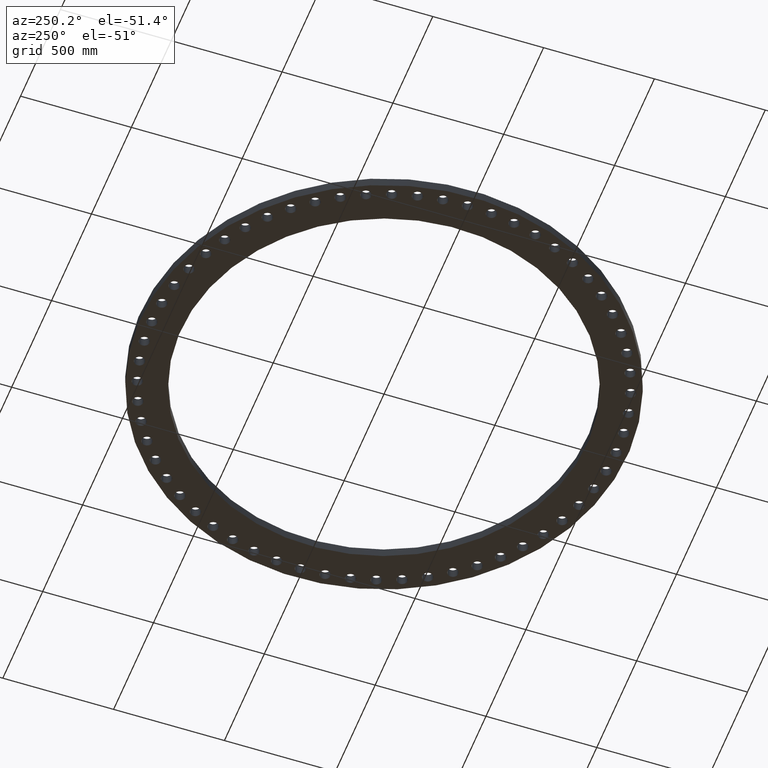
[diagram: clean part render]
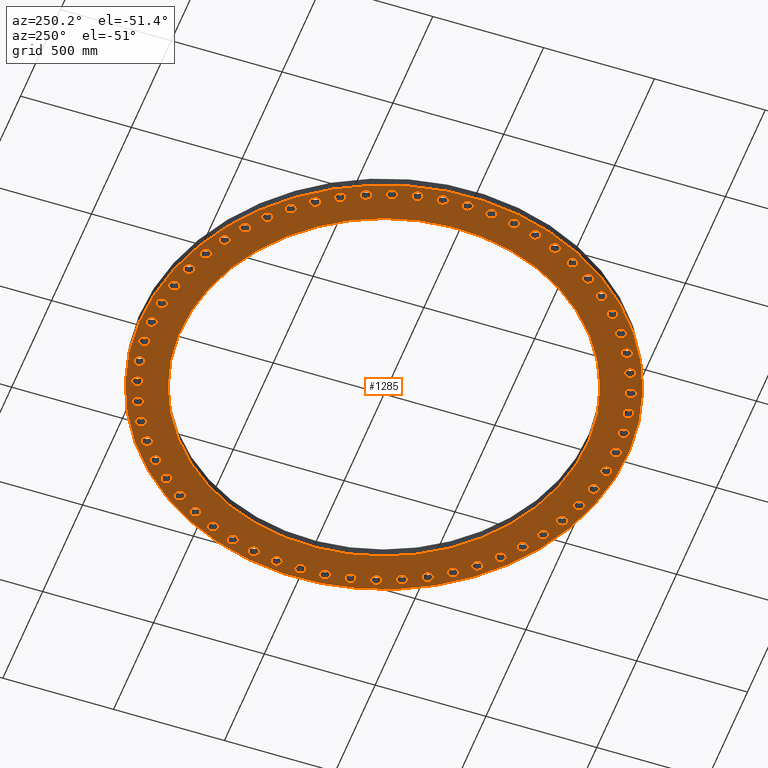
[diagram: same view with one face highlighted and labeled with its STEP entity id]
A machine part, auxiliary view. The second image highlights one B-rep face of the part: STEP entity #1285.
In plain terms, the highlighted planar face has unit normal (0, 0, 1).
Its self-contained STEP definition (entity closure, byte-faithful):
#51=AXIS2_PLACEMENT_3D('Circle Axis2P3D',#49,#50,$) ;
#77=AXIS2_PLACEMENT_3D('Circle Axis2P3D',#75,#76,$) ;
#122=AXIS2_PLACEMENT_3D('Circle Axis2P3D',#120,#121,$) ;
#139=AXIS2_PLACEMENT_3D('Circle Axis2P3D',#137,#138,$) ;
#165=AXIS2_PLACEMENT_3D('Circle Axis2P3D',#163,#164,$) ;
#191=AXIS2_PLACEMENT_3D('Circle Axis2P3D',#189,#190,$) ;
#209=AXIS2_PLACEMENT_3D('Plane Axis2P3D',#206,#207,#208) ;
#225=AXIS2_PLACEMENT_3D('Circle Axis2P3D',#223,#224,$) ;
#234=AXIS2_PLACEMENT_3D('Circle Axis2P3D',#232,#233,$) ;
#243=AXIS2_PLACEMENT_3D('Circle Axis2P3D',#241,#242,$) ;
#252=AXIS2_PLACEMENT_3D('Circle Axis2P3D',#250,#251,$) ;
#261=AXIS2_PLACEMENT_3D('Circle Axis2P3D',#259,#260,$) ;
#270=AXIS2_PLACEMENT_3D('Circle Axis2P3D',#268,#269,$) ;
#279=AXIS2_PLACEMENT_3D('Circle Axis2P3D',#277,#278,$) ;
#288=AXIS2_PLACEMENT_3D('Circle Axis2P3D',#286,#287,$) ;
#297=AXIS2_PLACEMENT_3D('Circle Axis2P3D',#295,#296,$) ;
#306=AXIS2_PLACEMENT_3D('Circle Axis2P3D',#304,#305,$) ;
#315=AXIS2_PLACEMENT_3D('Circle Axis2P3D',#313,#314,$) ;
#324=AXIS2_PLACEMENT_3D('Circle Axis2P3D',#322,#323,$) ;
#333=AXIS2_PLACEMENT_3D('Circle Axis2P3D',#331,#332,$) ;
#342=AXIS2_PLACEMENT_3D('Circle Axis2P3D',#340,#341,$) ;
#351=AXIS2_PLACEMENT_3D('Circle Axis2P3D',#349,#350,$) ;
#360=AXIS2_PLACEMENT_3D('Circle Axis2P3D',#358,#359,$) ;
#369=AXIS2_PLACEMENT_3D('Circle Axis2P3D',#367,#368,$) ;
#378=AXIS2_PLACEMENT_3D('Circle Axis2P3D',#376,#377,$) ;
#387=AXIS2_PLACEMENT_3D('Circle Axis2P3D',#385,#386,$) ;
#396=AXIS2_PLACEMENT_3D('Circle Axis2P3D',#394,#395,$) ;
#405=AXIS2_PLACEMENT_3D('Circle Axis2P3D',#403,#404,$) ;
#414=AXIS2_PLACEMENT_3D('Circle Axis2P3D',#412,#413,$) ;
#423=AXIS2_PLACEMENT_3D('Circle Axis2P3D',#421,#422,$) ;
#432=AXIS2_PLACEMENT_3D('Circle Axis2P3D',#430,#431,$) ;
#441=AXIS2_PLACEMENT_3D('Circle Axis2P3D',#439,#440,$) ;
#450=AXIS2_PLACEMENT_3D('Circle Axis2P3D',#448,#449,$) ;
#459=AXIS2_PLACEMENT_3D('Circle Axis2P3D',#457,#458,$) ;
#468=AXIS2_PLACEMENT_3D('Circle Axis2P3D',#466,#467,$) ;
#477=AXIS2_PLACEMENT_3D('Circle Axis2P3D',#475,#476,$) ;
#486=AXIS2_PLACEMENT_3D('Circle Axis2P3D',#484,#485,$) ;
#495=AXIS2_PLACEMENT_3D('Circle Axis2P3D',#493,#494,$) ;
#504=AXIS2_PLACEMENT_3D('Circle Axis2P3D',#502,#503,$) ;
#513=AXIS2_PLACEMENT_3D('Circle Axis2P3D',#511,#512,$) ;
#522=AXIS2_PLACEMENT_3D('Circle Axis2P3D',#520,#521,$) ;
#531=AXIS2_PLACEMENT_3D('Circle Axis2P3D',#529,#530,$) ;
#540=AXIS2_PLACEMENT_3D('Circle Axis2P3D',#538,#539,$) ;
#549=AXIS2_PLACEMENT_3D('Circle Axis2P3D',#547,#548,$) ;
#558=AXIS2_PLACEMENT_3D('Circle Axis2P3D',#556,#557,$) ;
#567=AXIS2_PLACEMENT_3D('Circle Axis2P3D',#565,#566,$) ;
#576=AXIS2_PLACEMENT_3D('Circle Axis2P3D',#574,#575,$) ;
#585=AXIS2_PLACEMENT_3D('Circle Axis2P3D',#583,#584,$) ;
#594=AXIS2_PLACEMENT_3D('Circle Axis2P3D',#592,#593,$) ;
#603=AXIS2_PLACEMENT_3D('Circle Axis2P3D',#601,#602,$) ;
#612=AXIS2_PLACEMENT_3D('Circle Axis2P3D',#610,#611,$) ;
#621=AXIS2_PLACEMENT_3D('Circle Axis2P3D',#619,#620,$) ;
#630=AXIS2_PLACEMENT_3D('Circle Axis2P3D',#628,#629,$) ;
#639=AXIS2_PLACEMENT_3D('Circle Axis2P3D',#637,#638,$) ;
#648=AXIS2_PLACEMENT_3D('Circle Axis2P3D',#646,#647,$) ;
#657=AXIS2_PLACEMENT_3D('Circle Axis2P3D',#655,#656,$) ;
#666=AXIS2_PLACEMENT_3D('Circle Axis2P3D',#664,#665,$) ;
#675=AXIS2_PLACEMENT_3D('Circle Axis2P3D',#673,#674,$) ;
#684=AXIS2_PLACEMENT_3D('Circle Axis2P3D',#682,#683,$) ;
#693=AXIS2_PLACEMENT_3D('Circle Axis2P3D',#691,#692,$) ;
#702=AXIS2_PLACEMENT_3D('Circle Axis2P3D',#700,#701,$) ;
#711=AXIS2_PLACEMENT_3D('Circle Axis2P3D',#709,#710,$) ;
#720=AXIS2_PLACEMENT_3D('Circle Axis2P3D',#718,#719,$) ;
#729=AXIS2_PLACEMENT_3D('Circle Axis2P3D',#727,#728,$) ;
#738=AXIS2_PLACEMENT_3D('Circle Axis2P3D',#736,#737,$) ;
#747=AXIS2_PLACEMENT_3D('Circle Axis2P3D',#745,#746,$) ;
#756=AXIS2_PLACEMENT_3D('Circle Axis2P3D',#754,#755,$) ;
#765=AXIS2_PLACEMENT_3D('Circle Axis2P3D',#763,#764,$) ;
#774=AXIS2_PLACEMENT_3D('Circle Axis2P3D',#772,#773,$) ;
#783=AXIS2_PLACEMENT_3D('Circle Axis2P3D',#781,#782,$) ;
#792=AXIS2_PLACEMENT_3D('Circle Axis2P3D',#790,#791,$) ;
#801=AXIS2_PLACEMENT_3D('Circle Axis2P3D',#799,#800,$) ;
#810=AXIS2_PLACEMENT_3D('Circle Axis2P3D',#808,#809,$) ;
#819=AXIS2_PLACEMENT_3D('Circle Axis2P3D',#817,#818,$) ;
#828=AXIS2_PLACEMENT_3D('Circle Axis2P3D',#826,#827,$) ;
#837=AXIS2_PLACEMENT_3D('Circle Axis2P3D',#835,#836,$) ;
#846=AXIS2_PLACEMENT_3D('Circle Axis2P3D',#844,#845,$) ;
#855=AXIS2_PLACEMENT_3D('Circle Axis2P3D',#853,#854,$) ;
#864=AXIS2_PLACEMENT_3D('Circle Axis2P3D',#862,#863,$) ;
#873=AXIS2_PLACEMENT_3D('Circle Axis2P3D',#871,#872,$) ;
#882=AXIS2_PLACEMENT_3D('Circle Axis2P3D',#880,#881,$) ;
#891=AXIS2_PLACEMENT_3D('Circle Axis2P3D',#889,#890,$) ;
#900=AXIS2_PLACEMENT_3D('Circle Axis2P3D',#898,#899,$) ;
#909=AXIS2_PLACEMENT_3D('Circle Axis2P3D',#907,#908,$) ;
#918=AXIS2_PLACEMENT_3D('Circle Axis2P3D',#916,#917,$) ;
#927=AXIS2_PLACEMENT_3D('Circle Axis2P3D',#925,#926,$) ;
#936=AXIS2_PLACEMENT_3D('Circle Axis2P3D',#934,#935,$) ;
#945=AXIS2_PLACEMENT_3D('Circle Axis2P3D',#943,#944,$) ;
#954=AXIS2_PLACEMENT_3D('Circle Axis2P3D',#952,#953,$) ;
#963=AXIS2_PLACEMENT_3D('Circle Axis2P3D',#961,#962,$) ;
#972=AXIS2_PLACEMENT_3D('Circle Axis2P3D',#970,#971,$) ;
#981=AXIS2_PLACEMENT_3D('Circle Axis2P3D',#979,#980,$) ;
#990=AXIS2_PLACEMENT_3D('Circle Axis2P3D',#988,#989,$) ;
#999=AXIS2_PLACEMENT_3D('Circle Axis2P3D',#997,#998,$) ;
#1008=AXIS2_PLACEMENT_3D('Circle Axis2P3D',#1006,#1007,$) ;
#1017=AXIS2_PLACEMENT_3D('Circle Axis2P3D',#1015,#1016,$) ;
#1026=AXIS2_PLACEMENT_3D('Circle Axis2P3D',#1024,#1025,$) ;
#1035=AXIS2_PLACEMENT_3D('Circle Axis2P3D',#1033,#1034,$) ;
#1044=AXIS2_PLACEMENT_3D('Circle Axis2P3D',#1042,#1043,$) ;
#1053=AXIS2_PLACEMENT_3D('Circle Axis2P3D',#1051,#1052,$) ;
#1062=AXIS2_PLACEMENT_3D('Circle Axis2P3D',#1060,#1061,$) ;
#1071=AXIS2_PLACEMENT_3D('Circle Axis2P3D',#1069,#1070,$) ;
#1080=AXIS2_PLACEMENT_3D('Circle Axis2P3D',#1078,#1079,$) ;
#1089=AXIS2_PLACEMENT_3D('Circle Axis2P3D',#1087,#1088,$) ;
#1098=AXIS2_PLACEMENT_3D('Circle Axis2P3D',#1096,#1097,$) ;
#1107=AXIS2_PLACEMENT_3D('Circle Axis2P3D',#1105,#1106,$) ;
#1116=AXIS2_PLACEMENT_3D('Circle Axis2P3D',#1114,#1115,$) ;
#1125=AXIS2_PLACEMENT_3D('Circle Axis2P3D',#1123,#1124,$) ;
#1134=AXIS2_PLACEMENT_3D('Circle Axis2P3D',#1132,#1133,$) ;
#1143=AXIS2_PLACEMENT_3D('Circle Axis2P3D',#1141,#1142,$) ;
#1152=AXIS2_PLACEMENT_3D('Circle Axis2P3D',#1150,#1151,$) ;
#1161=AXIS2_PLACEMENT_3D('Circle Axis2P3D',#1159,#1160,$) ;
#1170=AXIS2_PLACEMENT_3D('Circle Axis2P3D',#1168,#1169,$) ;
#1179=AXIS2_PLACEMENT_3D('Circle Axis2P3D',#1177,#1178,$) ;
#1188=AXIS2_PLACEMENT_3D('Circle Axis2P3D',#1186,#1187,$) ;
#1197=AXIS2_PLACEMENT_3D('Circle Axis2P3D',#1195,#1196,$) ;
#1206=AXIS2_PLACEMENT_3D('Circle Axis2P3D',#1204,#1205,$) ;
#1215=AXIS2_PLACEMENT_3D('Circle Axis2P3D',#1213,#1214,$) ;
#1224=AXIS2_PLACEMENT_3D('Circle Axis2P3D',#1222,#1223,$) ;
#1233=AXIS2_PLACEMENT_3D('Circle Axis2P3D',#1231,#1232,$) ;
#1242=AXIS2_PLACEMENT_3D('Circle Axis2P3D',#1240,#1241,$) ;
#1251=AXIS2_PLACEMENT_3D('Circle Axis2P3D',#1249,#1250,$) ;
#1260=AXIS2_PLACEMENT_3D('Circle Axis2P3D',#1258,#1259,$) ;
#1269=AXIS2_PLACEMENT_3D('Circle Axis2P3D',#1267,#1268,$) ;
#1278=AXIS2_PLACEMENT_3D('Circle Axis2P3D',#1276,#1277,$) ;
#44=CARTESIAN_POINT('Vertex',(40.4272663484,0.449461442443,0.)) ;
#49=CARTESIAN_POINT('Axis2P3D Location',(41.2500000002,0.,0.)) ;
#53=CARTESIAN_POINT('Vertex',(42.0727336519,-0.449461442443,0.)) ;
#75=CARTESIAN_POINT('Axis2P3D Location',(41.2500000002,0.,0.)) ;
#101=CARTESIAN_POINT('Vertex',(37.9554458019,20.7351545447,0.)) ;
#117=CARTESIAN_POINT('Vertex',(-37.9554458019,-20.7351545447,0.)) ;
#120=CARTESIAN_POINT('Axis2P3D Location',(0.,0.,0.)) ;
#137=CARTESIAN_POINT('Axis2P3D Location',(0.,0.,0.)) ;
#158=CARTESIAN_POINT('Vertex',(-31.6763425716,17.304864816,0.)) ;
#163=CARTESIAN_POINT('Axis2P3D Location',(-6.64385432059E-016,-2.09805925913E-016,0.)) ;
#167=CARTESIAN_POINT('Vertex',(31.6763425716,-17.304864816,0.)) ;
#189=CARTESIAN_POINT('Axis2P3D Location',(-6.64385432059E-016,-2.09805925913E-016,0.)) ;
#206=CARTESIAN_POINT('Axis2P3D Location',(0.,0.,0.)) ;
#223=CARTESIAN_POINT('Axis2P3D Location',(41.0240281841,4.31179910981,0.)) ;
#227=CARTESIAN_POINT('Vertex',(40.1588200395,4.67279927114,0.)) ;
#229=CARTESIAN_POINT('Vertex',(41.8892363287,3.95079894847,0.)) ;
#232=CARTESIAN_POINT('Axis2P3D Location',(41.0240281841,4.31179910981,0.)) ;
#241=CARTESIAN_POINT('Axis2P3D Location',(40.3485885304,8.57635724627,0.)) ;
#245=CARTESIAN_POINT('Vertex',(39.4503852944,8.84494093318,0.)) ;
#247=CARTESIAN_POINT('Vertex',(41.2467917664,8.30777355935,0.)) ;
#250=CARTESIAN_POINT('Axis2P3D Location',(40.3485885304,8.57635724627,0.)) ;
#259=CARTESIAN_POINT('Axis2P3D Location',(39.2310812973,12.746951018,0.)) ;
#263=CARTESIAN_POINT('Vertex',(38.3097238726,12.9201755714,0.)) ;
#265=CARTESIAN_POINT('Vertex',(40.1524387221,12.5737264646,0.)) ;
#268=CARTESIAN_POINT('Axis2P3D Location',(39.2310812973,12.746951018,0.)) ;
#277=CARTESIAN_POINT('Axis2P3D Location',(37.6837501279,16.7778865269,0.)) ;
#281=CARTESIAN_POINT('Vertex',(36.7493330992,16.8538540624,0.)) ;
#283=CARTESIAN_POINT('Vertex',(38.6181671566,16.7019189915,0.)) ;
#286=CARTESIAN_POINT('Axis2P3D Location',(37.6837501279,16.7778865269,0.)) ;
#295=CARTESIAN_POINT('Axis2P3D Location',(35.7235479063,20.6250000001,0.)) ;
#299=CARTESIAN_POINT('Vertex',(34.786308942,20.6028782014,0.)) ;
#301=CARTESIAN_POINT('Vertex',(36.6607868705,20.6471217988,0.)) ;
#304=CARTESIAN_POINT('Axis2P3D Location',(35.7235479063,20.6250000001,0.)) ;
#313=CARTESIAN_POINT('Axis2P3D Location',(33.3719510181,24.2461416572,0.)) ;
#317=CARTESIAN_POINT('Vertex',(32.4421587046,24.1261728953,0.)) ;
#319=CARTESIAN_POINT('Vertex',(34.3017433316,24.366110419,0.)) ;
#322=CARTESIAN_POINT('Axis2P3D Location',(33.3719510181,24.2461416572,0.)) ;
#331=CARTESIAN_POINT('Axis2P3D Location',(30.6547240511,27.6016375124,0.)) ;
#335=CARTESIAN_POINT('Vertex',(29.7425653875,27.3851361903,0.)) ;
#337=CARTESIAN_POINT('Vertex',(31.5668827146,27.8181388345,0.)) ;
#340=CARTESIAN_POINT('Axis2P3D Location',(30.6547240511,27.6016375124,0.)) ;
#349=CARTESIAN_POINT('Axis2P3D Location',(27.6016375124,30.6547240511,0.)) ;
#353=CARTESIAN_POINT('Vertex',(26.7171062999,30.3440622025,0.)) ;
#355=CARTESIAN_POINT('Vertex',(28.4861687249,30.9653858996,0.)) ;
#358=CARTESIAN_POINT('Axis2P3D Location',(27.6016375124,30.6547240511,0.)) ;
#367=CARTESIAN_POINT('Axis2P3D Location',(24.2461416572,33.3719510181,0.)) ;
#371=CARTESIAN_POINT('Vertex',(23.3989290048,32.9705323193,0.)) ;
#373=CARTESIAN_POINT('Vertex',(25.0933543095,33.7733697169,0.)) ;
#376=CARTESIAN_POINT('Axis2P3D Location',(24.2461416572,33.3719510181,0.)) ;
#385=CARTESIAN_POINT('Axis2P3D Location',(20.6250000001,35.7235479063,0.)) ;
#389=CARTESIAN_POINT('Vertex',(19.824388147,35.2357703845,0.)) ;
#391=CARTESIAN_POINT('Vertex',(21.4256118531,36.211325428,0.)) ;
#394=CARTESIAN_POINT('Axis2P3D Location',(20.6250000001,35.7235479063,0.)) ;
#403=CARTESIAN_POINT('Axis2P3D Location',(16.7778865269,37.6837501279,0.)) ;
#407=CARTESIAN_POINT('Vertex',(16.0326471441,37.1149579758,0.)) ;
#409=CARTESIAN_POINT('Vertex',(17.5231259097,38.25254228,0.)) ;
#412=CARTESIAN_POINT('Axis2P3D Location',(16.7778865269,37.6837501279,0.)) ;
#421=CARTESIAN_POINT('Axis2P3D Location',(12.746951018,39.2310812973,0.)) ;
#425=CARTESIAN_POINT('Vertex',(12.0652491041,38.5875063207,0.)) ;
#427=CARTESIAN_POINT('Vertex',(13.4286529319,39.874656274,0.)) ;
#430=CARTESIAN_POINT('Axis2P3D Location',(12.746951018,39.2310812973,0.)) ;
#439=CARTESIAN_POINT('Axis2P3D Location',(8.57635724627,40.3485885304,0.)) ;
#443=CARTESIAN_POINT('Vertex',(7.96566167009,39.6372818714,0.)) ;
#445=CARTESIAN_POINT('Vertex',(9.18705282245,41.0598951895,0.)) ;
#448=CARTESIAN_POINT('Axis2P3D Location',(8.57635724627,40.3485885304,0.)) ;
#457=CARTESIAN_POINT('Axis2P3D Location',(4.31179910981,41.0240281841,0.)) ;
#461=CARTESIAN_POINT('Vertex',(3.77880077988,40.2527830672,0.)) ;
#463=CARTESIAN_POINT('Vertex',(4.84479743974,41.795273301,0.)) ;
#466=CARTESIAN_POINT('Axis2P3D Location',(4.31179910981,41.0240281841,0.)) ;
#475=CARTESIAN_POINT('Axis2P3D Location',(-8.67197827109E-015,41.2500000002,0.)) ;
#479=CARTESIAN_POINT('Vertex',(-0.449461442443,40.4272663484,0.)) ;
#481=CARTESIAN_POINT('Vertex',(0.449461442443,42.0727336519,0.)) ;
#484=CARTESIAN_POINT('Axis2P3D Location',(-4.19611851827E-015,41.2500000002,0.)) ;
#493=CARTESIAN_POINT('Axis2P3D Location',(-4.31179910981,41.0240281841,0.)) ;
#497=CARTESIAN_POINT('Vertex',(-4.67279927114,40.1588200395,0.)) ;
#499=CARTESIAN_POINT('Vertex',(-3.95079894847,41.8892363287,0.)) ;
#502=CARTESIAN_POINT('Axis2P3D Location',(-4.31179910981,41.0240281841,0.)) ;
#511=CARTESIAN_POINT('Axis2P3D Location',(-8.57635724627,40.3485885304,0.)) ;
#515=CARTESIAN_POINT('Vertex',(-8.84494093318,39.4503852944,0.)) ;
#517=CARTESIAN_POINT('Vertex',(-8.30777355935,41.2467917664,0.)) ;
#520=CARTESIAN_POINT('Axis2P3D Location',(-8.57635724627,40.3485885304,0.)) ;
#529=CARTESIAN_POINT('Axis2P3D Location',(-12.746951018,39.2310812973,0.)) ;
#533=CARTESIAN_POINT('Vertex',(-12.9201755714,38.3097238726,0.)) ;
#535=CARTESIAN_POINT('Vertex',(-12.5737264646,40.1524387221,0.)) ;
#538=CARTESIAN_POINT('Axis2P3D Location',(-12.746951018,39.2310812973,0.)) ;
#547=CARTESIAN_POINT('Axis2P3D Location',(-16.7778865269,37.6837501279,0.)) ;
#551=CARTESIAN_POINT('Vertex',(-16.8538540624,36.7493330992,0.)) ;
#553=CARTESIAN_POINT('Vertex',(-16.7019189915,38.6181671566,0.)) ;
#556=CARTESIAN_POINT('Axis2P3D Location',(-16.7778865269,37.6837501279,0.)) ;
#565=CARTESIAN_POINT('Axis2P3D Location',(-20.6250000001,35.7235479063,0.)) ;
#569=CARTESIAN_POINT('Vertex',(-20.6028782014,34.786308942,0.)) ;
#571=CARTESIAN_POINT('Vertex',(-20.6471217988,36.6607868705,0.)) ;
#574=CARTESIAN_POINT('Axis2P3D Location',(-20.6250000001,35.7235479063,0.)) ;
#583=CARTESIAN_POINT('Axis2P3D Location',(-24.2461416572,33.3719510181,0.)) ;
#587=CARTESIAN_POINT('Vertex',(-24.1261728953,32.4421587046,0.)) ;
#589=CARTESIAN_POINT('Vertex',(-24.366110419,34.3017433316,0.)) ;
#592=CARTESIAN_POINT('Axis2P3D Location',(-24.2461416572,33.3719510181,0.)) ;
#601=CARTESIAN_POINT('Axis2P3D Location',(-27.6016375124,30.6547240511,0.)) ;
#605=CARTESIAN_POINT('Vertex',(-27.3851361903,29.7425653875,0.)) ;
#607=CARTESIAN_POINT('Vertex',(-27.8181388345,31.5668827146,0.)) ;
#610=CARTESIAN_POINT('Axis2P3D Location',(-27.6016375124,30.6547240511,0.)) ;
#619=CARTESIAN_POINT('Axis2P3D Location',(-30.6547240511,27.6016375124,0.)) ;
#623=CARTESIAN_POINT('Vertex',(-30.3440622025,26.7171062999,0.)) ;
#625=CARTESIAN_POINT('Vertex',(-30.9653858996,28.4861687249,0.)) ;
#628=CARTESIAN_POINT('Axis2P3D Location',(-30.6547240511,27.6016375124,0.)) ;
#637=CARTESIAN_POINT('Axis2P3D Location',(-33.3719510181,24.2461416572,0.)) ;
#641=CARTESIAN_POINT('Vertex',(-32.9705323193,23.3989290048,0.)) ;
#643=CARTESIAN_POINT('Vertex',(-33.7733697169,25.0933543095,0.)) ;
#646=CARTESIAN_POINT('Axis2P3D Location',(-33.3719510181,24.2461416572,0.)) ;
#655=CARTESIAN_POINT('Axis2P3D Location',(-35.7235479063,20.6250000001,0.)) ;
#659=CARTESIAN_POINT('Vertex',(-35.2357703845,19.824388147,0.)) ;
#661=CARTESIAN_POINT('Vertex',(-36.211325428,21.4256118531,0.)) ;
#664=CARTESIAN_POINT('Axis2P3D Location',(-35.7235479063,20.6250000001,0.)) ;
#673=CARTESIAN_POINT('Axis2P3D Location',(-37.6837501279,16.7778865269,0.)) ;
#677=CARTESIAN_POINT('Vertex',(-37.1149579758,16.0326471441,0.)) ;
#679=CARTESIAN_POINT('Vertex',(-38.25254228,17.5231259097,0.)) ;
#682=CARTESIAN_POINT('Axis2P3D Location',(-37.6837501279,16.7778865269,0.)) ;
#691=CARTESIAN_POINT('Axis2P3D Location',(-39.2310812973,12.746951018,0.)) ;
#695=CARTESIAN_POINT('Vertex',(-38.5875063207,12.0652491041,0.)) ;
#697=CARTESIAN_POINT('Vertex',(-39.874656274,13.4286529319,0.)) ;
#700=CARTESIAN_POINT('Axis2P3D Location',(-39.2310812973,12.746951018,0.)) ;
#709=CARTESIAN_POINT('Axis2P3D Location',(-40.3485885304,8.57635724627,0.)) ;
#713=CARTESIAN_POINT('Vertex',(-39.6372818714,7.96566167009,0.)) ;
#715=CARTESIAN_POINT('Vertex',(-41.0598951895,9.18705282245,0.)) ;
#718=CARTESIAN_POINT('Axis2P3D Location',(-40.3485885304,8.57635724627,0.)) ;
#727=CARTESIAN_POINT('Axis2P3D Location',(-41.0240281841,4.31179910981,0.)) ;
#731=CARTESIAN_POINT('Vertex',(-40.2527830672,3.77880077988,0.)) ;
#733=CARTESIAN_POINT('Vertex',(-41.795273301,4.84479743974,0.)) ;
#736=CARTESIAN_POINT('Axis2P3D Location',(-41.0240281841,4.31179910981,0.)) ;
#745=CARTESIAN_POINT('Axis2P3D Location',(-41.2500000002,6.71378962923E-015,0.)) ;
#749=CARTESIAN_POINT('Vertex',(-40.4272663484,-0.449461442443,0.)) ;
#751=CARTESIAN_POINT('Vertex',(-42.0727336519,0.449461442443,0.)) ;
#754=CARTESIAN_POINT('Axis2P3D Location',(-41.2500000002,3.49676543189E-015,0.)) ;
#763=CARTESIAN_POINT('Axis2P3D Location',(-41.0240281841,-4.31179910981,0.)) ;
#767=CARTESIAN_POINT('Vertex',(-40.1588200395,-4.67279927114,0.)) ;
#769=CARTESIAN_POINT('Vertex',(-41.8892363287,-3.95079894847,0.)) ;
#772=CARTESIAN_POINT('Axis2P3D Location',(-41.0240281841,-4.31179910981,0.)) ;
#781=CARTESIAN_POINT('Axis2P3D Location',(-40.3485885304,-8.57635724627,0.)) ;
#785=CARTESIAN_POINT('Vertex',(-39.4503852944,-8.84494093318,0.)) ;
#787=CARTESIAN_POINT('Vertex',(-41.2467917664,-8.30777355935,0.)) ;
#790=CARTESIAN_POINT('Axis2P3D Location',(-40.3485885304,-8.57635724627,0.)) ;
#799=CARTESIAN_POINT('Axis2P3D Location',(-39.2310812973,-12.746951018,0.)) ;
#803=CARTESIAN_POINT('Vertex',(-38.3097238726,-12.9201755714,0.)) ;
#805=CARTESIAN_POINT('Vertex',(-40.1524387221,-12.5737264646,0.)) ;
#808=CARTESIAN_POINT('Axis2P3D Location',(-39.2310812973,-12.746951018,0.)) ;
#817=CARTESIAN_POINT('Axis2P3D Location',(-37.6837501279,-16.7778865269,0.)) ;
#821=CARTESIAN_POINT('Vertex',(-36.7493330992,-16.8538540624,0.)) ;
#823=CARTESIAN_POINT('Vertex',(-38.6181671566,-16.7019189915,0.)) ;
#826=CARTESIAN_POINT('Axis2P3D Location',(-37.6837501279,-16.7778865269,0.)) ;
#835=CARTESIAN_POINT('Axis2P3D Location',(-35.7235479063,-20.6250000001,0.)) ;
#839=CARTESIAN_POINT('Vertex',(-34.786308942,-20.6028782014,0.)) ;
#841=CARTESIAN_POINT('Vertex',(-36.6607868705,-20.6471217988,0.)) ;
#844=CARTESIAN_POINT('Axis2P3D Location',(-35.7235479063,-20.6250000001,0.)) ;
#853=CARTESIAN_POINT('Axis2P3D Location',(-33.3719510181,-24.2461416572,0.)) ;
#857=CARTESIAN_POINT('Vertex',(-32.4421587046,-24.1261728953,0.)) ;
#859=CARTESIAN_POINT('Vertex',(-34.3017433316,-24.366110419,0.)) ;
#862=CARTESIAN_POINT('Axis2P3D Location',(-33.3719510181,-24.2461416572,0.)) ;
#871=CARTESIAN_POINT('Axis2P3D Location',(-30.6547240511,-27.6016375124,0.)) ;
#875=CARTESIAN_POINT('Vertex',(-29.7425653875,-27.3851361903,0.)) ;
#877=CARTESIAN_POINT('Vertex',(-31.5668827146,-27.8181388345,0.)) ;
#880=CARTESIAN_POINT('Axis2P3D Location',(-30.6547240511,-27.6016375124,0.)) ;
#889=CARTESIAN_POINT('Axis2P3D Location',(-27.6016375124,-30.6547240511,0.)) ;
#893=CARTESIAN_POINT('Vertex',(-26.7171062999,-30.3440622025,0.)) ;
#895=CARTESIAN_POINT('Vertex',(-28.4861687249,-30.9653858996,0.)) ;
#898=CARTESIAN_POINT('Axis2P3D Location',(-27.6016375124,-30.6547240511,0.)) ;
#907=CARTESIAN_POINT('Axis2P3D Location',(-24.2461416572,-33.3719510181,0.)) ;
#911=CARTESIAN_POINT('Vertex',(-23.3989290048,-32.9705323193,0.)) ;
#913=CARTESIAN_POINT('Vertex',(-25.0933543095,-33.7733697169,0.)) ;
#916=CARTESIAN_POINT('Axis2P3D Location',(-24.2461416572,-33.3719510181,0.)) ;
#925=CARTESIAN_POINT('Axis2P3D Location',(-20.6250000001,-35.7235479063,0.)) ;
#929=CARTESIAN_POINT('Vertex',(-19.824388147,-35.2357703845,0.)) ;
#931=CARTESIAN_POINT('Vertex',(-21.4256118531,-36.211325428,0.)) ;
#934=CARTESIAN_POINT('Axis2P3D Location',(-20.6250000001,-35.7235479063,0.)) ;
#943=CARTESIAN_POINT('Axis2P3D Location',(-16.7778865269,-37.6837501279,0.)) ;
#947=CARTESIAN_POINT('Vertex',(-16.0326471441,-37.1149579758,0.)) ;
#949=CARTESIAN_POINT('Vertex',(-17.5231259097,-38.25254228,0.)) ;
#952=CARTESIAN_POINT('Axis2P3D Location',(-16.7778865269,-37.6837501279,0.)) ;
#961=CARTESIAN_POINT('Axis2P3D Location',(-12.746951018,-39.2310812973,0.)) ;
#965=CARTESIAN_POINT('Vertex',(-12.0652491041,-38.5875063207,0.)) ;
#967=CARTESIAN_POINT('Vertex',(-13.4286529319,-39.874656274,0.)) ;
#970=CARTESIAN_POINT('Axis2P3D Location',(-12.746951018,-39.2310812973,0.)) ;
#979=CARTESIAN_POINT('Axis2P3D Location',(-8.57635724627,-40.3485885304,0.)) ;
#983=CARTESIAN_POINT('Vertex',(-7.96566167009,-39.6372818714,0.)) ;
#985=CARTESIAN_POINT('Vertex',(-9.18705282245,-41.0598951895,0.)) ;
#988=CARTESIAN_POINT('Axis2P3D Location',(-8.57635724627,-40.3485885304,0.)) ;
#997=CARTESIAN_POINT('Axis2P3D Location',(-4.31179910981,-41.0240281841,0.)) ;
#1001=CARTESIAN_POINT('Vertex',(-3.77880077988,-40.2527830672,0.)) ;
#1003=CARTESIAN_POINT('Vertex',(-4.84479743974,-41.795273301,0.)) ;
#1006=CARTESIAN_POINT('Axis2P3D Location',(-4.31179910981,-41.0240281841,0.)) ;
#1015=CARTESIAN_POINT('Axis2P3D Location',(-5.45495407375E-015,-41.2500000002,0.)) ;
#1019=CARTESIAN_POINT('Vertex',(0.449461442443,-40.4272663484,0.)) ;
#1021=CARTESIAN_POINT('Vertex',(-0.449461442443,-42.0727336519,0.)) ;
#1024=CARTESIAN_POINT('Axis2P3D Location',(-9.93081382657E-015,-41.2500000002,0.)) ;
#1033=CARTESIAN_POINT('Axis2P3D Location',(4.31179910981,-41.0240281841,0.)) ;
#1037=CARTESIAN_POINT('Vertex',(4.67279927114,-40.1588200395,0.)) ;
#1039=CARTESIAN_POINT('Vertex',(3.95079894847,-41.8892363287,0.)) ;
#1042=CARTESIAN_POINT('Axis2P3D Location',(4.31179910981,-41.0240281841,0.)) ;
#1051=CARTESIAN_POINT('Axis2P3D Location',(8.57635724627,-40.3485885304,0.)) ;
#1055=CARTESIAN_POINT('Vertex',(8.84494093318,-39.4503852944,0.)) ;
#1057=CARTESIAN_POINT('Vertex',(8.30777355935,-41.2467917664,0.)) ;
#1060=CARTESIAN_POINT('Axis2P3D Location',(8.57635724627,-40.3485885304,0.)) ;
#1069=CARTESIAN_POINT('Axis2P3D Location',(12.746951018,-39.2310812973,0.)) ;
#1073=CARTESIAN_POINT('Vertex',(12.9201755714,-38.3097238726,0.)) ;
#1075=CARTESIAN_POINT('Vertex',(12.5737264646,-40.1524387221,0.)) ;
#1078=CARTESIAN_POINT('Axis2P3D Location',(12.746951018,-39.2310812973,0.)) ;
#1087=CARTESIAN_POINT('Axis2P3D Location',(16.7778865269,-37.6837501279,0.)) ;
#1091=CARTESIAN_POINT('Vertex',(16.8538540624,-36.7493330992,0.)) ;
#1093=CARTESIAN_POINT('Vertex',(16.7019189915,-38.6181671566,0.)) ;
#1096=CARTESIAN_POINT('Axis2P3D Location',(16.7778865269,-37.6837501279,0.)) ;
#1105=CARTESIAN_POINT('Axis2P3D Location',(20.6250000001,-35.7235479063,0.)) ;
#1109=CARTESIAN_POINT('Vertex',(20.6028782014,-34.786308942,0.)) ;
#1111=CARTESIAN_POINT('Vertex',(20.6471217988,-36.6607868705,0.)) ;
#1114=CARTESIAN_POINT('Axis2P3D Location',(20.6250000001,-35.7235479063,0.)) ;
#1123=CARTESIAN_POINT('Axis2P3D Location',(24.2461416572,-33.3719510181,0.)) ;
#1127=CARTESIAN_POINT('Vertex',(24.1261728953,-32.4421587046,0.)) ;
#1129=CARTESIAN_POINT('Vertex',(24.366110419,-34.3017433316,0.)) ;
#1132=CARTESIAN_POINT('Axis2P3D Location',(24.2461416572,-33.3719510181,0.)) ;
#1141=CARTESIAN_POINT('Axis2P3D Location',(27.6016375124,-30.6547240511,0.)) ;
#1145=CARTESIAN_POINT('Vertex',(27.3851361903,-29.7425653875,0.)) ;
#1147=CARTESIAN_POINT('Vertex',(27.8181388345,-31.5668827146,0.)) ;
#1150=CARTESIAN_POINT('Axis2P3D Location',(27.6016375124,-30.6547240511,0.)) ;
#1159=CARTESIAN_POINT('Axis2P3D Location',(30.6547240511,-27.6016375124,0.)) ;
#1163=CARTESIAN_POINT('Vertex',(30.3440622025,-26.7171062999,0.)) ;
#1165=CARTESIAN_POINT('Vertex',(30.9653858996,-28.4861687249,0.)) ;
#1168=CARTESIAN_POINT('Axis2P3D Location',(30.6547240511,-27.6016375124,0.)) ;
#1177=CARTESIAN_POINT('Axis2P3D Location',(33.3719510181,-24.2461416572,0.)) ;
#1181=CARTESIAN_POINT('Vertex',(32.9705323193,-23.3989290048,0.)) ;
#1183=CARTESIAN_POINT('Vertex',(33.7733697169,-25.0933543095,0.)) ;
#1186=CARTESIAN_POINT('Axis2P3D Location',(33.3719510181,-24.2461416572,0.)) ;
#1195=CARTESIAN_POINT('Axis2P3D Location',(35.7235479063,-20.6250000001,0.)) ;
#1199=CARTESIAN_POINT('Vertex',(35.2357703845,-19.824388147,0.)) ;
#1201=CARTESIAN_POINT('Vertex',(36.211325428,-21.4256118531,0.)) ;
#1204=CARTESIAN_POINT('Axis2P3D Location',(35.7235479063,-20.6250000001,0.)) ;
#1213=CARTESIAN_POINT('Axis2P3D Location',(37.6837501279,-16.7778865269,0.)) ;
#1217=CARTESIAN_POINT('Vertex',(37.1149579758,-16.0326471441,0.)) ;
#1219=CARTESIAN_POINT('Vertex',(38.25254228,-17.5231259097,0.)) ;
#1222=CARTESIAN_POINT('Axis2P3D Location',(37.6837501279,-16.7778865269,0.)) ;
#1231=CARTESIAN_POINT('Axis2P3D Location',(39.2310812973,-12.746951018,0.)) ;
#1235=CARTESIAN_POINT('Vertex',(38.5875063207,-12.0652491041,0.)) ;
#1237=CARTESIAN_POINT('Vertex',(39.874656274,-13.4286529319,0.)) ;
#1240=CARTESIAN_POINT('Axis2P3D Location',(39.2310812973,-12.746951018,0.)) ;
#1249=CARTESIAN_POINT('Axis2P3D Location',(40.3485885304,-8.57635724627,0.)) ;
#1253=CARTESIAN_POINT('Vertex',(39.6372818714,-7.96566167009,0.)) ;
#1255=CARTESIAN_POINT('Vertex',(41.0598951895,-9.18705282245,0.)) ;
#1258=CARTESIAN_POINT('Axis2P3D Location',(40.3485885304,-8.57635724627,0.)) ;
#1267=CARTESIAN_POINT('Axis2P3D Location',(41.0240281841,-4.31179910981,0.)) ;
#1271=CARTESIAN_POINT('Vertex',(40.2527830672,-3.77880077988,0.)) ;
#1273=CARTESIAN_POINT('Vertex',(41.795273301,-4.84479743974,0.)) ;
#1276=CARTESIAN_POINT('Axis2P3D Location',(41.0240281841,-4.31179910981,0.)) ;
#50=DIRECTION('Axis2P3D Direction',(0.,-0.,-0.0393700787402)) ;
#76=DIRECTION('Axis2P3D Direction',(0.,-0.,-0.0393700787402)) ;
#121=DIRECTION('Axis2P3D Direction',(0.,0.,0.0393700787402)) ;
#138=DIRECTION('Axis2P3D Direction',(0.,0.,0.0393700787402)) ;
#164=DIRECTION('Axis2P3D Direction',(0.,-0.,-0.0393700787402)) ;
#190=DIRECTION('Axis2P3D Direction',(0.,-0.,-0.0393700787402)) ;
#207=DIRECTION('Axis2P3D Direction',(0.,0.,0.0393700787402)) ;
#208=DIRECTION('Axis2P3D XDirection',(0.0393700787402,0.,0.)) ;
#224=DIRECTION('Axis2P3D Direction',(0.,0.,0.0393700787402)) ;
#233=DIRECTION('Axis2P3D Direction',(0.,0.,0.0393700787402)) ;
#242=DIRECTION('Axis2P3D Direction',(0.,0.,0.0393700787402)) ;
#251=DIRECTION('Axis2P3D Direction',(0.,0.,0.0393700787402)) ;
#260=DIRECTION('Axis2P3D Direction',(0.,0.,0.0393700787402)) ;
#269=DIRECTION('Axis2P3D Direction',(0.,0.,0.0393700787402)) ;
#278=DIRECTION('Axis2P3D Direction',(0.,0.,0.0393700787402)) ;
#287=DIRECTION('Axis2P3D Direction',(0.,0.,0.0393700787402)) ;
#296=DIRECTION('Axis2P3D Direction',(0.,0.,0.0393700787402)) ;
#305=DIRECTION('Axis2P3D Direction',(0.,0.,0.0393700787402)) ;
#314=DIRECTION('Axis2P3D Direction',(0.,0.,0.0393700787402)) ;
#323=DIRECTION('Axis2P3D Direction',(0.,0.,0.0393700787402)) ;
#332=DIRECTION('Axis2P3D Direction',(0.,0.,0.0393700787402)) ;
#341=DIRECTION('Axis2P3D Direction',(0.,0.,0.0393700787402)) ;
#350=DIRECTION('Axis2P3D Direction',(0.,0.,0.0393700787402)) ;
#359=DIRECTION('Axis2P3D Direction',(0.,0.,0.0393700787402)) ;
#368=DIRECTION('Axis2P3D Direction',(0.,0.,0.0393700787402)) ;
#377=DIRECTION('Axis2P3D Direction',(0.,0.,0.0393700787402)) ;
#386=DIRECTION('Axis2P3D Direction',(0.,0.,0.0393700787402)) ;
#395=DIRECTION('Axis2P3D Direction',(0.,0.,0.0393700787402)) ;
#404=DIRECTION('Axis2P3D Direction',(0.,0.,0.0393700787402)) ;
#413=DIRECTION('Axis2P3D Direction',(0.,0.,0.0393700787402)) ;
#422=DIRECTION('Axis2P3D Direction',(0.,0.,0.0393700787402)) ;
#431=DIRECTION('Axis2P3D Direction',(0.,0.,0.0393700787402)) ;
#440=DIRECTION('Axis2P3D Direction',(0.,0.,0.0393700787402)) ;
#449=DIRECTION('Axis2P3D Direction',(0.,0.,0.0393700787402)) ;
#458=DIRECTION('Axis2P3D Direction',(0.,0.,0.0393700787402)) ;
#467=DIRECTION('Axis2P3D Direction',(0.,0.,0.0393700787402)) ;
#476=DIRECTION('Axis2P3D Direction',(0.,0.,0.0393700787402)) ;
#485=DIRECTION('Axis2P3D Direction',(0.,0.,0.0393700787402)) ;
#494=DIRECTION('Axis2P3D Direction',(0.,0.,0.0393700787402)) ;
#503=DIRECTION('Axis2P3D Direction',(0.,0.,0.0393700787402)) ;
#512=DIRECTION('Axis2P3D Direction',(0.,0.,0.0393700787402)) ;
#521=DIRECTION('Axis2P3D Direction',(0.,0.,0.0393700787402)) ;
#530=DIRECTION('Axis2P3D Direction',(0.,0.,0.0393700787402)) ;
#539=DIRECTION('Axis2P3D Direction',(0.,0.,0.0393700787402)) ;
#548=DIRECTION('Axis2P3D Direction',(0.,0.,0.0393700787402)) ;
#557=DIRECTION('Axis2P3D Direction',(0.,0.,0.0393700787402)) ;
#566=DIRECTION('Axis2P3D Direction',(0.,0.,0.0393700787402)) ;
#575=DIRECTION('Axis2P3D Direction',(0.,0.,0.0393700787402)) ;
#584=DIRECTION('Axis2P3D Direction',(0.,0.,0.0393700787402)) ;
#593=DIRECTION('Axis2P3D Direction',(0.,0.,0.0393700787402)) ;
#602=DIRECTION('Axis2P3D Direction',(0.,0.,0.0393700787402)) ;
#611=DIRECTION('Axis2P3D Direction',(0.,0.,0.0393700787402)) ;
#620=DIRECTION('Axis2P3D Direction',(0.,0.,0.0393700787402)) ;
#629=DIRECTION('Axis2P3D Direction',(0.,0.,0.0393700787402)) ;
#638=DIRECTION('Axis2P3D Direction',(0.,0.,0.0393700787402)) ;
#647=DIRECTION('Axis2P3D Direction',(0.,0.,0.0393700787402)) ;
#656=DIRECTION('Axis2P3D Direction',(0.,0.,0.0393700787402)) ;
#665=DIRECTION('Axis2P3D Direction',(0.,0.,0.0393700787402)) ;
#674=DIRECTION('Axis2P3D Direction',(0.,0.,0.0393700787402)) ;
#683=DIRECTION('Axis2P3D Direction',(0.,0.,0.0393700787402)) ;
#692=DIRECTION('Axis2P3D Direction',(0.,0.,0.0393700787402)) ;
#701=DIRECTION('Axis2P3D Direction',(0.,0.,0.0393700787402)) ;
#710=DIRECTION('Axis2P3D Direction',(0.,0.,0.0393700787402)) ;
#719=DIRECTION('Axis2P3D Direction',(0.,0.,0.0393700787402)) ;
#728=DIRECTION('Axis2P3D Direction',(0.,0.,0.0393700787402)) ;
#737=DIRECTION('Axis2P3D Direction',(0.,0.,0.0393700787402)) ;
#746=DIRECTION('Axis2P3D Direction',(0.,0.,0.0393700787402)) ;
#755=DIRECTION('Axis2P3D Direction',(0.,0.,0.0393700787402)) ;
#764=DIRECTION('Axis2P3D Direction',(0.,0.,0.0393700787402)) ;
#773=DIRECTION('Axis2P3D Direction',(0.,0.,0.0393700787402)) ;
#782=DIRECTION('Axis2P3D Direction',(0.,0.,0.0393700787402)) ;
#791=DIRECTION('Axis2P3D Direction',(0.,0.,0.0393700787402)) ;
#800=DIRECTION('Axis2P3D Direction',(0.,0.,0.0393700787402)) ;
#809=DIRECTION('Axis2P3D Direction',(0.,0.,0.0393700787402)) ;
#818=DIRECTION('Axis2P3D Direction',(0.,0.,0.0393700787402)) ;
#827=DIRECTION('Axis2P3D Direction',(0.,0.,0.0393700787402)) ;
#836=DIRECTION('Axis2P3D Direction',(0.,0.,0.0393700787402)) ;
#845=DIRECTION('Axis2P3D Direction',(0.,0.,0.0393700787402)) ;
#854=DIRECTION('Axis2P3D Direction',(0.,0.,0.0393700787402)) ;
#863=DIRECTION('Axis2P3D Direction',(0.,0.,0.0393700787402)) ;
#872=DIRECTION('Axis2P3D Direction',(0.,0.,0.0393700787402)) ;
#881=DIRECTION('Axis2P3D Direction',(0.,0.,0.0393700787402)) ;
#890=DIRECTION('Axis2P3D Direction',(0.,0.,0.0393700787402)) ;
#899=DIRECTION('Axis2P3D Direction',(0.,0.,0.0393700787402)) ;
#908=DIRECTION('Axis2P3D Direction',(0.,0.,0.0393700787402)) ;
#917=DIRECTION('Axis2P3D Direction',(0.,0.,0.0393700787402)) ;
#926=DIRECTION('Axis2P3D Direction',(0.,0.,0.0393700787402)) ;
#935=DIRECTION('Axis2P3D Direction',(0.,0.,0.0393700787402)) ;
#944=DIRECTION('Axis2P3D Direction',(0.,0.,0.0393700787402)) ;
#953=DIRECTION('Axis2P3D Direction',(0.,0.,0.0393700787402)) ;
#962=DIRECTION('Axis2P3D Direction',(0.,0.,0.0393700787402)) ;
#971=DIRECTION('Axis2P3D Direction',(0.,0.,0.0393700787402)) ;
#980=DIRECTION('Axis2P3D Direction',(0.,0.,0.0393700787402)) ;
#989=DIRECTION('Axis2P3D Direction',(0.,0.,0.0393700787402)) ;
#998=DIRECTION('Axis2P3D Direction',(0.,0.,0.0393700787402)) ;
#1007=DIRECTION('Axis2P3D Direction',(0.,0.,0.0393700787402)) ;
#1016=DIRECTION('Axis2P3D Direction',(0.,0.,0.0393700787402)) ;
#1025=DIRECTION('Axis2P3D Direction',(0.,0.,0.0393700787402)) ;
#1034=DIRECTION('Axis2P3D Direction',(0.,0.,0.0393700787402)) ;
#1043=DIRECTION('Axis2P3D Direction',(0.,0.,0.0393700787402)) ;
#1052=DIRECTION('Axis2P3D Direction',(0.,0.,0.0393700787402)) ;
#1061=DIRECTION('Axis2P3D Direction',(0.,0.,0.0393700787402)) ;
#1070=DIRECTION('Axis2P3D Direction',(0.,0.,0.0393700787402)) ;
#1079=DIRECTION('Axis2P3D Direction',(0.,0.,0.0393700787402)) ;
#1088=DIRECTION('Axis2P3D Direction',(0.,0.,0.0393700787402)) ;
#1097=DIRECTION('Axis2P3D Direction',(0.,0.,0.0393700787402)) ;
#1106=DIRECTION('Axis2P3D Direction',(0.,0.,0.0393700787402)) ;
#1115=DIRECTION('Axis2P3D Direction',(0.,0.,0.0393700787402)) ;
#1124=DIRECTION('Axis2P3D Direction',(0.,0.,0.0393700787402)) ;
#1133=DIRECTION('Axis2P3D Direction',(0.,0.,0.0393700787402)) ;
#1142=DIRECTION('Axis2P3D Direction',(0.,0.,0.0393700787402)) ;
#1151=DIRECTION('Axis2P3D Direction',(0.,0.,0.0393700787402)) ;
#1160=DIRECTION('Axis2P3D Direction',(0.,0.,0.0393700787402)) ;
#1169=DIRECTION('Axis2P3D Direction',(0.,0.,0.0393700787402)) ;
#1178=DIRECTION('Axis2P3D Direction',(0.,0.,0.0393700787402)) ;
#1187=DIRECTION('Axis2P3D Direction',(0.,0.,0.0393700787402)) ;
#1196=DIRECTION('Axis2P3D Direction',(0.,0.,0.0393700787402)) ;
#1205=DIRECTION('Axis2P3D Direction',(0.,0.,0.0393700787402)) ;
#1214=DIRECTION('Axis2P3D Direction',(0.,0.,0.0393700787402)) ;
#1223=DIRECTION('Axis2P3D Direction',(0.,0.,0.0393700787402)) ;
#1232=DIRECTION('Axis2P3D Direction',(0.,0.,0.0393700787402)) ;
#1241=DIRECTION('Axis2P3D Direction',(0.,0.,0.0393700787402)) ;
#1250=DIRECTION('Axis2P3D Direction',(0.,0.,0.0393700787402)) ;
#1259=DIRECTION('Axis2P3D Direction',(0.,0.,0.0393700787402)) ;
#1268=DIRECTION('Axis2P3D Direction',(0.,0.,0.0393700787402)) ;
#1277=DIRECTION('Axis2P3D Direction',(0.,0.,0.0393700787402)) ;
#212=ORIENTED_EDGE('',*,*,#124,.F.) ;
#213=ORIENTED_EDGE('',*,*,#141,.F.) ;
#216=ORIENTED_EDGE('',*,*,#55,.T.) ;
#217=ORIENTED_EDGE('',*,*,#79,.T.) ;
#220=ORIENTED_EDGE('',*,*,#169,.T.) ;
#221=ORIENTED_EDGE('',*,*,#193,.T.) ;
#238=ORIENTED_EDGE('',*,*,#231,.T.) ;
#239=ORIENTED_EDGE('',*,*,#236,.T.) ;
#256=ORIENTED_EDGE('',*,*,#249,.T.) ;
#257=ORIENTED_EDGE('',*,*,#254,.T.) ;
#274=ORIENTED_EDGE('',*,*,#267,.T.) ;
#275=ORIENTED_EDGE('',*,*,#272,.T.) ;
#292=ORIENTED_EDGE('',*,*,#285,.T.) ;
#293=ORIENTED_EDGE('',*,*,#290,.T.) ;
#310=ORIENTED_EDGE('',*,*,#303,.T.) ;
#311=ORIENTED_EDGE('',*,*,#308,.T.) ;
#328=ORIENTED_EDGE('',*,*,#321,.T.) ;
#329=ORIENTED_EDGE('',*,*,#326,.T.) ;
#346=ORIENTED_EDGE('',*,*,#339,.T.) ;
#347=ORIENTED_EDGE('',*,*,#344,.T.) ;
#364=ORIENTED_EDGE('',*,*,#357,.T.) ;
#365=ORIENTED_EDGE('',*,*,#362,.T.) ;
#382=ORIENTED_EDGE('',*,*,#375,.T.) ;
#383=ORIENTED_EDGE('',*,*,#380,.T.) ;
#400=ORIENTED_EDGE('',*,*,#393,.T.) ;
#401=ORIENTED_EDGE('',*,*,#398,.T.) ;
#418=ORIENTED_EDGE('',*,*,#411,.T.) ;
#419=ORIENTED_EDGE('',*,*,#416,.T.) ;
#436=ORIENTED_EDGE('',*,*,#429,.T.) ;
#437=ORIENTED_EDGE('',*,*,#434,.T.) ;
#454=ORIENTED_EDGE('',*,*,#447,.T.) ;
#455=ORIENTED_EDGE('',*,*,#452,.T.) ;
#472=ORIENTED_EDGE('',*,*,#465,.T.) ;
#473=ORIENTED_EDGE('',*,*,#470,.T.) ;
#490=ORIENTED_EDGE('',*,*,#483,.T.) ;
#491=ORIENTED_EDGE('',*,*,#488,.T.) ;
#508=ORIENTED_EDGE('',*,*,#501,.T.) ;
#509=ORIENTED_EDGE('',*,*,#506,.T.) ;
#526=ORIENTED_EDGE('',*,*,#519,.T.) ;
#527=ORIENTED_EDGE('',*,*,#524,.T.) ;
#544=ORIENTED_EDGE('',*,*,#537,.T.) ;
#545=ORIENTED_EDGE('',*,*,#542,.T.) ;
#562=ORIENTED_EDGE('',*,*,#555,.T.) ;
#563=ORIENTED_EDGE('',*,*,#560,.T.) ;
#580=ORIENTED_EDGE('',*,*,#573,.T.) ;
#581=ORIENTED_EDGE('',*,*,#578,.T.) ;
#598=ORIENTED_EDGE('',*,*,#591,.T.) ;
#599=ORIENTED_EDGE('',*,*,#596,.T.) ;
#616=ORIENTED_EDGE('',*,*,#609,.T.) ;
#617=ORIENTED_EDGE('',*,*,#614,.T.) ;
#634=ORIENTED_EDGE('',*,*,#627,.T.) ;
#635=ORIENTED_EDGE('',*,*,#632,.T.) ;
#652=ORIENTED_EDGE('',*,*,#645,.T.) ;
#653=ORIENTED_EDGE('',*,*,#650,.T.) ;
#670=ORIENTED_EDGE('',*,*,#663,.T.) ;
#671=ORIENTED_EDGE('',*,*,#668,.T.) ;
#688=ORIENTED_EDGE('',*,*,#681,.T.) ;
#689=ORIENTED_EDGE('',*,*,#686,.T.) ;
#706=ORIENTED_EDGE('',*,*,#699,.T.) ;
#707=ORIENTED_EDGE('',*,*,#704,.T.) ;
#724=ORIENTED_EDGE('',*,*,#717,.T.) ;
#725=ORIENTED_EDGE('',*,*,#722,.T.) ;
#742=ORIENTED_EDGE('',*,*,#735,.T.) ;
#743=ORIENTED_EDGE('',*,*,#740,.T.) ;
#760=ORIENTED_EDGE('',*,*,#753,.T.) ;
#761=ORIENTED_EDGE('',*,*,#758,.T.) ;
#778=ORIENTED_EDGE('',*,*,#771,.T.) ;
#779=ORIENTED_EDGE('',*,*,#776,.T.) ;
#796=ORIENTED_EDGE('',*,*,#789,.T.) ;
#797=ORIENTED_EDGE('',*,*,#794,.T.) ;
#814=ORIENTED_EDGE('',*,*,#807,.T.) ;
#815=ORIENTED_EDGE('',*,*,#812,.T.) ;
#832=ORIENTED_EDGE('',*,*,#825,.T.) ;
#833=ORIENTED_EDGE('',*,*,#830,.T.) ;
#850=ORIENTED_EDGE('',*,*,#843,.T.) ;
#851=ORIENTED_EDGE('',*,*,#848,.T.) ;
#868=ORIENTED_EDGE('',*,*,#861,.T.) ;
#869=ORIENTED_EDGE('',*,*,#866,.T.) ;
#886=ORIENTED_EDGE('',*,*,#879,.T.) ;
#887=ORIENTED_EDGE('',*,*,#884,.T.) ;
#904=ORIENTED_EDGE('',*,*,#897,.T.) ;
#905=ORIENTED_EDGE('',*,*,#902,.T.) ;
#922=ORIENTED_EDGE('',*,*,#915,.T.) ;
#923=ORIENTED_EDGE('',*,*,#920,.T.) ;
#940=ORIENTED_EDGE('',*,*,#933,.T.) ;
#941=ORIENTED_EDGE('',*,*,#938,.T.) ;
#958=ORIENTED_EDGE('',*,*,#951,.T.) ;
#959=ORIENTED_EDGE('',*,*,#956,.T.) ;
#976=ORIENTED_EDGE('',*,*,#969,.T.) ;
#977=ORIENTED_EDGE('',*,*,#974,.T.) ;
#994=ORIENTED_EDGE('',*,*,#987,.T.) ;
#995=ORIENTED_EDGE('',*,*,#992,.T.) ;
#1012=ORIENTED_EDGE('',*,*,#1005,.T.) ;
#1013=ORIENTED_EDGE('',*,*,#1010,.T.) ;
#1030=ORIENTED_EDGE('',*,*,#1023,.T.) ;
#1031=ORIENTED_EDGE('',*,*,#1028,.T.) ;
#1048=ORIENTED_EDGE('',*,*,#1041,.T.) ;
#1049=ORIENTED_EDGE('',*,*,#1046,.T.) ;
#1066=ORIENTED_EDGE('',*,*,#1059,.T.) ;
#1067=ORIENTED_EDGE('',*,*,#1064,.T.) ;
#1084=ORIENTED_EDGE('',*,*,#1077,.T.) ;
#1085=ORIENTED_EDGE('',*,*,#1082,.T.) ;
#1102=ORIENTED_EDGE('',*,*,#1095,.T.) ;
#1103=ORIENTED_EDGE('',*,*,#1100,.T.) ;
#1120=ORIENTED_EDGE('',*,*,#1113,.T.) ;
#1121=ORIENTED_EDGE('',*,*,#1118,.T.) ;
#1138=ORIENTED_EDGE('',*,*,#1131,.T.) ;
#1139=ORIENTED_EDGE('',*,*,#1136,.T.) ;
#1156=ORIENTED_EDGE('',*,*,#1149,.T.) ;
#1157=ORIENTED_EDGE('',*,*,#1154,.T.) ;
#1174=ORIENTED_EDGE('',*,*,#1167,.T.) ;
#1175=ORIENTED_EDGE('',*,*,#1172,.T.) ;
#1192=ORIENTED_EDGE('',*,*,#1185,.T.) ;
#1193=ORIENTED_EDGE('',*,*,#1190,.T.) ;
#1210=ORIENTED_EDGE('',*,*,#1203,.T.) ;
#1211=ORIENTED_EDGE('',*,*,#1208,.T.) ;
#1228=ORIENTED_EDGE('',*,*,#1221,.T.) ;
#1229=ORIENTED_EDGE('',*,*,#1226,.T.) ;
#1246=ORIENTED_EDGE('',*,*,#1239,.T.) ;
#1247=ORIENTED_EDGE('',*,*,#1244,.T.) ;
#1264=ORIENTED_EDGE('',*,*,#1257,.T.) ;
#1265=ORIENTED_EDGE('',*,*,#1262,.T.) ;
#1282=ORIENTED_EDGE('',*,*,#1275,.T.) ;
#1283=ORIENTED_EDGE('',*,*,#1280,.T.) ;
#218=FACE_BOUND('',#215,.T.) ;
#222=FACE_BOUND('',#219,.T.) ;
#240=FACE_BOUND('',#237,.T.) ;
#258=FACE_BOUND('',#255,.T.) ;
#276=FACE_BOUND('',#273,.T.) ;
#294=FACE_BOUND('',#291,.T.) ;
#312=FACE_BOUND('',#309,.T.) ;
#330=FACE_BOUND('',#327,.T.) ;
#348=FACE_BOUND('',#345,.T.) ;
#366=FACE_BOUND('',#363,.T.) ;
#384=FACE_BOUND('',#381,.T.) ;
#402=FACE_BOUND('',#399,.T.) ;
#420=FACE_BOUND('',#417,.T.) ;
#438=FACE_BOUND('',#435,.T.) ;
#456=FACE_BOUND('',#453,.T.) ;
#474=FACE_BOUND('',#471,.T.) ;
#492=FACE_BOUND('',#489,.T.) ;
#510=FACE_BOUND('',#507,.T.) ;
#528=FACE_BOUND('',#525,.T.) ;
#546=FACE_BOUND('',#543,.T.) ;
#564=FACE_BOUND('',#561,.T.) ;
#582=FACE_BOUND('',#579,.T.) ;
#600=FACE_BOUND('',#597,.T.) ;
#618=FACE_BOUND('',#615,.T.) ;
#636=FACE_BOUND('',#633,.T.) ;
#654=FACE_BOUND('',#651,.T.) ;
#672=FACE_BOUND('',#669,.T.) ;
#690=FACE_BOUND('',#687,.T.) ;
#708=FACE_BOUND('',#705,.T.) ;
#726=FACE_BOUND('',#723,.T.) ;
#744=FACE_BOUND('',#741,.T.) ;
#762=FACE_BOUND('',#759,.T.) ;
#780=FACE_BOUND('',#777,.T.) ;
#798=FACE_BOUND('',#795,.T.) ;
#816=FACE_BOUND('',#813,.T.) ;
#834=FACE_BOUND('',#831,.T.) ;
#852=FACE_BOUND('',#849,.T.) ;
#870=FACE_BOUND('',#867,.T.) ;
#888=FACE_BOUND('',#885,.T.) ;
#906=FACE_BOUND('',#903,.T.) ;
#924=FACE_BOUND('',#921,.T.) ;
#942=FACE_BOUND('',#939,.T.) ;
#960=FACE_BOUND('',#957,.T.) ;
#978=FACE_BOUND('',#975,.T.) ;
#996=FACE_BOUND('',#993,.T.) ;
#1014=FACE_BOUND('',#1011,.T.) ;
#1032=FACE_BOUND('',#1029,.T.) ;
#1050=FACE_BOUND('',#1047,.T.) ;
#1068=FACE_BOUND('',#1065,.T.) ;
#1086=FACE_BOUND('',#1083,.T.) ;
#1104=FACE_BOUND('',#1101,.T.) ;
#1122=FACE_BOUND('',#1119,.T.) ;
#1140=FACE_BOUND('',#1137,.T.) ;
#1158=FACE_BOUND('',#1155,.T.) ;
#1176=FACE_BOUND('',#1173,.T.) ;
#1194=FACE_BOUND('',#1191,.T.) ;
#1212=FACE_BOUND('',#1209,.T.) ;
#1230=FACE_BOUND('',#1227,.T.) ;
#1248=FACE_BOUND('',#1245,.T.) ;
#1266=FACE_BOUND('',#1263,.T.) ;
#1284=FACE_BOUND('',#1281,.T.) ;
#1285=ADVANCED_FACE('PartBody',(#214,#218,#222,#240,#258,#276,#294,#312,#330,#348,#366,#384,#402,#420,#438,#456,#474,#492,#510,#528,#546,#564,#582,#600,#618,#636,#654,#672,#690,#708,#726,#744,#762,#780,#798,#816,#834,#852,#870,#888,#906,#924,#942,#960,#978,#996,#1014,#1032,#1050,#1068,#1086,#1104,#1122,#1140,#1158,#1176,#1194,#1212,#1230,#1248,#1266,#1284),#210,.F.) ;
#52=CIRCLE('generated circle',#51,0.937500000004) ;
#78=CIRCLE('generated circle',#77,0.937500000004) ;
#123=CIRCLE('generated circle',#122,43.2500000002) ;
#140=CIRCLE('generated circle',#139,43.2500000002) ;
#166=CIRCLE('generated circle',#165,36.0950000001) ;
#192=CIRCLE('generated circle',#191,36.0950000001) ;
#226=CIRCLE('generated circle',#225,0.937500000004) ;
#235=CIRCLE('generated circle',#234,0.937500000004) ;
#244=CIRCLE('generated circle',#243,0.937500000004) ;
#253=CIRCLE('generated circle',#252,0.937500000004) ;
#262=CIRCLE('generated circle',#261,0.937500000004) ;
#271=CIRCLE('generated circle',#270,0.937500000004) ;
#280=CIRCLE('generated circle',#279,0.937500000004) ;
#289=CIRCLE('generated circle',#288,0.937500000004) ;
#298=CIRCLE('generated circle',#297,0.937500000004) ;
#307=CIRCLE('generated circle',#306,0.937500000004) ;
#316=CIRCLE('generated circle',#315,0.937500000004) ;
#325=CIRCLE('generated circle',#324,0.937500000004) ;
#334=CIRCLE('generated circle',#333,0.937500000004) ;
#343=CIRCLE('generated circle',#342,0.937500000004) ;
#352=CIRCLE('generated circle',#351,0.937500000004) ;
#361=CIRCLE('generated circle',#360,0.937500000004) ;
#370=CIRCLE('generated circle',#369,0.937500000004) ;
#379=CIRCLE('generated circle',#378,0.937500000004) ;
#388=CIRCLE('generated circle',#387,0.937500000004) ;
#397=CIRCLE('generated circle',#396,0.937500000004) ;
#406=CIRCLE('generated circle',#405,0.937500000004) ;
#415=CIRCLE('generated circle',#414,0.937500000004) ;
#424=CIRCLE('generated circle',#423,0.937500000004) ;
#433=CIRCLE('generated circle',#432,0.937500000004) ;
#442=CIRCLE('generated circle',#441,0.937500000004) ;
#451=CIRCLE('generated circle',#450,0.937500000004) ;
#460=CIRCLE('generated circle',#459,0.937500000004) ;
#469=CIRCLE('generated circle',#468,0.937500000004) ;
#478=CIRCLE('generated circle',#477,0.937500000004) ;
#487=CIRCLE('generated circle',#486,0.937500000004) ;
#496=CIRCLE('generated circle',#495,0.937500000004) ;
#505=CIRCLE('generated circle',#504,0.937500000004) ;
#514=CIRCLE('generated circle',#513,0.937500000004) ;
#523=CIRCLE('generated circle',#522,0.937500000004) ;
#532=CIRCLE('generated circle',#531,0.937500000004) ;
#541=CIRCLE('generated circle',#540,0.937500000004) ;
#550=CIRCLE('generated circle',#549,0.937500000004) ;
#559=CIRCLE('generated circle',#558,0.937500000004) ;
#568=CIRCLE('generated circle',#567,0.937500000004) ;
#577=CIRCLE('generated circle',#576,0.937500000004) ;
#586=CIRCLE('generated circle',#585,0.937500000004) ;
#595=CIRCLE('generated circle',#594,0.937500000004) ;
#604=CIRCLE('generated circle',#603,0.937500000004) ;
#613=CIRCLE('generated circle',#612,0.937500000004) ;
#622=CIRCLE('generated circle',#621,0.937500000004) ;
#631=CIRCLE('generated circle',#630,0.937500000004) ;
#640=CIRCLE('generated circle',#639,0.937500000004) ;
#649=CIRCLE('generated circle',#648,0.937500000004) ;
#658=CIRCLE('generated circle',#657,0.937500000004) ;
#667=CIRCLE('generated circle',#666,0.937500000004) ;
#676=CIRCLE('generated circle',#675,0.937500000004) ;
#685=CIRCLE('generated circle',#684,0.937500000004) ;
#694=CIRCLE('generated circle',#693,0.937500000004) ;
#703=CIRCLE('generated circle',#702,0.937500000004) ;
#712=CIRCLE('generated circle',#711,0.937500000004) ;
#721=CIRCLE('generated circle',#720,0.937500000004) ;
#730=CIRCLE('generated circle',#729,0.937500000004) ;
#739=CIRCLE('generated circle',#738,0.937500000004) ;
#748=CIRCLE('generated circle',#747,0.937500000004) ;
#757=CIRCLE('generated circle',#756,0.937500000004) ;
#766=CIRCLE('generated circle',#765,0.937500000004) ;
#775=CIRCLE('generated circle',#774,0.937500000004) ;
#784=CIRCLE('generated circle',#783,0.937500000004) ;
#793=CIRCLE('generated circle',#792,0.937500000004) ;
#802=CIRCLE('generated circle',#801,0.937500000004) ;
#811=CIRCLE('generated circle',#810,0.937500000004) ;
#820=CIRCLE('generated circle',#819,0.937500000004) ;
#829=CIRCLE('generated circle',#828,0.937500000004) ;
#838=CIRCLE('generated circle',#837,0.937500000004) ;
#847=CIRCLE('generated circle',#846,0.937500000004) ;
#856=CIRCLE('generated circle',#855,0.937500000004) ;
#865=CIRCLE('generated circle',#864,0.937500000004) ;
#874=CIRCLE('generated circle',#873,0.937500000004) ;
#883=CIRCLE('generated circle',#882,0.937500000004) ;
#892=CIRCLE('generated circle',#891,0.937500000004) ;
#901=CIRCLE('generated circle',#900,0.937500000004) ;
#910=CIRCLE('generated circle',#909,0.937500000004) ;
#919=CIRCLE('generated circle',#918,0.937500000004) ;
#928=CIRCLE('generated circle',#927,0.937500000004) ;
#937=CIRCLE('generated circle',#936,0.937500000004) ;
#946=CIRCLE('generated circle',#945,0.937500000004) ;
#955=CIRCLE('generated circle',#954,0.937500000004) ;
#964=CIRCLE('generated circle',#963,0.937500000004) ;
#973=CIRCLE('generated circle',#972,0.937500000004) ;
#982=CIRCLE('generated circle',#981,0.937500000004) ;
#991=CIRCLE('generated circle',#990,0.937500000004) ;
#1000=CIRCLE('generated circle',#999,0.937500000004) ;
#1009=CIRCLE('generated circle',#1008,0.937500000004) ;
#1018=CIRCLE('generated circle',#1017,0.937500000004) ;
#1027=CIRCLE('generated circle',#1026,0.937500000004) ;
#1036=CIRCLE('generated circle',#1035,0.937500000004) ;
#1045=CIRCLE('generated circle',#1044,0.937500000004) ;
#1054=CIRCLE('generated circle',#1053,0.937500000004) ;
#1063=CIRCLE('generated circle',#1062,0.937500000004) ;
#1072=CIRCLE('generated circle',#1071,0.937500000004) ;
#1081=CIRCLE('generated circle',#1080,0.937500000004) ;
#1090=CIRCLE('generated circle',#1089,0.937500000004) ;
#1099=CIRCLE('generated circle',#1098,0.937500000004) ;
#1108=CIRCLE('generated circle',#1107,0.937500000004) ;
#1117=CIRCLE('generated circle',#1116,0.937500000004) ;
#1126=CIRCLE('generated circle',#1125,0.937500000004) ;
#1135=CIRCLE('generated circle',#1134,0.937500000004) ;
#1144=CIRCLE('generated circle',#1143,0.937500000004) ;
#1153=CIRCLE('generated circle',#1152,0.937500000004) ;
#1162=CIRCLE('generated circle',#1161,0.937500000004) ;
#1171=CIRCLE('generated circle',#1170,0.937500000004) ;
#1180=CIRCLE('generated circle',#1179,0.937500000004) ;
#1189=CIRCLE('generated circle',#1188,0.937500000004) ;
#1198=CIRCLE('generated circle',#1197,0.937500000004) ;
#1207=CIRCLE('generated circle',#1206,0.937500000004) ;
#1216=CIRCLE('generated circle',#1215,0.937500000004) ;
#1225=CIRCLE('generated circle',#1224,0.937500000004) ;
#1234=CIRCLE('generated circle',#1233,0.937500000004) ;
#1243=CIRCLE('generated circle',#1242,0.937500000004) ;
#1252=CIRCLE('generated circle',#1251,0.937500000004) ;
#1261=CIRCLE('generated circle',#1260,0.937500000004) ;
#1270=CIRCLE('generated circle',#1269,0.937500000004) ;
#1279=CIRCLE('generated circle',#1278,0.937500000004) ;
#55=EDGE_CURVE('',#54,#45,#52,.F.) ;
#79=EDGE_CURVE('',#45,#54,#78,.F.) ;
#124=EDGE_CURVE('',#118,#102,#123,.T.) ;
#141=EDGE_CURVE('',#102,#118,#140,.T.) ;
#169=EDGE_CURVE('',#168,#159,#166,.F.) ;
#193=EDGE_CURVE('',#159,#168,#192,.F.) ;
#231=EDGE_CURVE('',#228,#230,#226,.T.) ;
#236=EDGE_CURVE('',#230,#228,#235,.T.) ;
#249=EDGE_CURVE('',#246,#248,#244,.T.) ;
#254=EDGE_CURVE('',#248,#246,#253,.T.) ;
#267=EDGE_CURVE('',#264,#266,#262,.T.) ;
#272=EDGE_CURVE('',#266,#264,#271,.T.) ;
#285=EDGE_CURVE('',#282,#284,#280,.T.) ;
#290=EDGE_CURVE('',#284,#282,#289,.T.) ;
#303=EDGE_CURVE('',#300,#302,#298,.T.) ;
#308=EDGE_CURVE('',#302,#300,#307,.T.) ;
#321=EDGE_CURVE('',#318,#320,#316,.T.) ;
#326=EDGE_CURVE('',#320,#318,#325,.T.) ;
#339=EDGE_CURVE('',#336,#338,#334,.T.) ;
#344=EDGE_CURVE('',#338,#336,#343,.T.) ;
#357=EDGE_CURVE('',#354,#356,#352,.T.) ;
#362=EDGE_CURVE('',#356,#354,#361,.T.) ;
#375=EDGE_CURVE('',#372,#374,#370,.T.) ;
#380=EDGE_CURVE('',#374,#372,#379,.T.) ;
#393=EDGE_CURVE('',#390,#392,#388,.T.) ;
#398=EDGE_CURVE('',#392,#390,#397,.T.) ;
#411=EDGE_CURVE('',#408,#410,#406,.T.) ;
#416=EDGE_CURVE('',#410,#408,#415,.T.) ;
#429=EDGE_CURVE('',#426,#428,#424,.T.) ;
#434=EDGE_CURVE('',#428,#426,#433,.T.) ;
#447=EDGE_CURVE('',#444,#446,#442,.T.) ;
#452=EDGE_CURVE('',#446,#444,#451,.T.) ;
#465=EDGE_CURVE('',#462,#464,#460,.T.) ;
#470=EDGE_CURVE('',#464,#462,#469,.T.) ;
#483=EDGE_CURVE('',#480,#482,#478,.T.) ;
#488=EDGE_CURVE('',#482,#480,#487,.T.) ;
#501=EDGE_CURVE('',#498,#500,#496,.T.) ;
#506=EDGE_CURVE('',#500,#498,#505,.T.) ;
#519=EDGE_CURVE('',#516,#518,#514,.T.) ;
#524=EDGE_CURVE('',#518,#516,#523,.T.) ;
#537=EDGE_CURVE('',#534,#536,#532,.T.) ;
#542=EDGE_CURVE('',#536,#534,#541,.T.) ;
#555=EDGE_CURVE('',#552,#554,#550,.T.) ;
#560=EDGE_CURVE('',#554,#552,#559,.T.) ;
#573=EDGE_CURVE('',#570,#572,#568,.T.) ;
#578=EDGE_CURVE('',#572,#570,#577,.T.) ;
#591=EDGE_CURVE('',#588,#590,#586,.T.) ;
#596=EDGE_CURVE('',#590,#588,#595,.T.) ;
#609=EDGE_CURVE('',#606,#608,#604,.T.) ;
#614=EDGE_CURVE('',#608,#606,#613,.T.) ;
#627=EDGE_CURVE('',#624,#626,#622,.T.) ;
#632=EDGE_CURVE('',#626,#624,#631,.T.) ;
#645=EDGE_CURVE('',#642,#644,#640,.T.) ;
#650=EDGE_CURVE('',#644,#642,#649,.T.) ;
#663=EDGE_CURVE('',#660,#662,#658,.T.) ;
#668=EDGE_CURVE('',#662,#660,#667,.T.) ;
#681=EDGE_CURVE('',#678,#680,#676,.T.) ;
#686=EDGE_CURVE('',#680,#678,#685,.T.) ;
#699=EDGE_CURVE('',#696,#698,#694,.T.) ;
#704=EDGE_CURVE('',#698,#696,#703,.T.) ;
#717=EDGE_CURVE('',#714,#716,#712,.T.) ;
#722=EDGE_CURVE('',#716,#714,#721,.T.) ;
#735=EDGE_CURVE('',#732,#734,#730,.T.) ;
#740=EDGE_CURVE('',#734,#732,#739,.T.) ;
#753=EDGE_CURVE('',#750,#752,#748,.T.) ;
#758=EDGE_CURVE('',#752,#750,#757,.T.) ;
#771=EDGE_CURVE('',#768,#770,#766,.T.) ;
#776=EDGE_CURVE('',#770,#768,#775,.T.) ;
#789=EDGE_CURVE('',#786,#788,#784,.T.) ;
#794=EDGE_CURVE('',#788,#786,#793,.T.) ;
#807=EDGE_CURVE('',#804,#806,#802,.T.) ;
#812=EDGE_CURVE('',#806,#804,#811,.T.) ;
#825=EDGE_CURVE('',#822,#824,#820,.T.) ;
#830=EDGE_CURVE('',#824,#822,#829,.T.) ;
#843=EDGE_CURVE('',#840,#842,#838,.T.) ;
#848=EDGE_CURVE('',#842,#840,#847,.T.) ;
#861=EDGE_CURVE('',#858,#860,#856,.T.) ;
#866=EDGE_CURVE('',#860,#858,#865,.T.) ;
#879=EDGE_CURVE('',#876,#878,#874,.T.) ;
#884=EDGE_CURVE('',#878,#876,#883,.T.) ;
#897=EDGE_CURVE('',#894,#896,#892,.T.) ;
#902=EDGE_CURVE('',#896,#894,#901,.T.) ;
#915=EDGE_CURVE('',#912,#914,#910,.T.) ;
#920=EDGE_CURVE('',#914,#912,#919,.T.) ;
#933=EDGE_CURVE('',#930,#932,#928,.T.) ;
#938=EDGE_CURVE('',#932,#930,#937,.T.) ;
#951=EDGE_CURVE('',#948,#950,#946,.T.) ;
#956=EDGE_CURVE('',#950,#948,#955,.T.) ;
#969=EDGE_CURVE('',#966,#968,#964,.T.) ;
#974=EDGE_CURVE('',#968,#966,#973,.T.) ;
#987=EDGE_CURVE('',#984,#986,#982,.T.) ;
#992=EDGE_CURVE('',#986,#984,#991,.T.) ;
#1005=EDGE_CURVE('',#1002,#1004,#1000,.T.) ;
#1010=EDGE_CURVE('',#1004,#1002,#1009,.T.) ;
#1023=EDGE_CURVE('',#1020,#1022,#1018,.T.) ;
#1028=EDGE_CURVE('',#1022,#1020,#1027,.T.) ;
#1041=EDGE_CURVE('',#1038,#1040,#1036,.T.) ;
#1046=EDGE_CURVE('',#1040,#1038,#1045,.T.) ;
#1059=EDGE_CURVE('',#1056,#1058,#1054,.T.) ;
#1064=EDGE_CURVE('',#1058,#1056,#1063,.T.) ;
#1077=EDGE_CURVE('',#1074,#1076,#1072,.T.) ;
#1082=EDGE_CURVE('',#1076,#1074,#1081,.T.) ;
#1095=EDGE_CURVE('',#1092,#1094,#1090,.T.) ;
#1100=EDGE_CURVE('',#1094,#1092,#1099,.T.) ;
#1113=EDGE_CURVE('',#1110,#1112,#1108,.T.) ;
#1118=EDGE_CURVE('',#1112,#1110,#1117,.T.) ;
#1131=EDGE_CURVE('',#1128,#1130,#1126,.T.) ;
#1136=EDGE_CURVE('',#1130,#1128,#1135,.T.) ;
#1149=EDGE_CURVE('',#1146,#1148,#1144,.T.) ;
#1154=EDGE_CURVE('',#1148,#1146,#1153,.T.) ;
#1167=EDGE_CURVE('',#1164,#1166,#1162,.T.) ;
#1172=EDGE_CURVE('',#1166,#1164,#1171,.T.) ;
#1185=EDGE_CURVE('',#1182,#1184,#1180,.T.) ;
#1190=EDGE_CURVE('',#1184,#1182,#1189,.T.) ;
#1203=EDGE_CURVE('',#1200,#1202,#1198,.T.) ;
#1208=EDGE_CURVE('',#1202,#1200,#1207,.T.) ;
#1221=EDGE_CURVE('',#1218,#1220,#1216,.T.) ;
#1226=EDGE_CURVE('',#1220,#1218,#1225,.T.) ;
#1239=EDGE_CURVE('',#1236,#1238,#1234,.T.) ;
#1244=EDGE_CURVE('',#1238,#1236,#1243,.T.) ;
#1257=EDGE_CURVE('',#1254,#1256,#1252,.T.) ;
#1262=EDGE_CURVE('',#1256,#1254,#1261,.T.) ;
#1275=EDGE_CURVE('',#1272,#1274,#1270,.T.) ;
#1280=EDGE_CURVE('',#1274,#1272,#1279,.T.) ;
#211=EDGE_LOOP('',(#212,#213)) ;
#215=EDGE_LOOP('',(#216,#217)) ;
#219=EDGE_LOOP('',(#220,#221)) ;
#237=EDGE_LOOP('',(#238,#239)) ;
#255=EDGE_LOOP('',(#256,#257)) ;
#273=EDGE_LOOP('',(#274,#275)) ;
#291=EDGE_LOOP('',(#292,#293)) ;
#309=EDGE_LOOP('',(#310,#311)) ;
#327=EDGE_LOOP('',(#328,#329)) ;
#345=EDGE_LOOP('',(#346,#347)) ;
#363=EDGE_LOOP('',(#364,#365)) ;
#381=EDGE_LOOP('',(#382,#383)) ;
#399=EDGE_LOOP('',(#400,#401)) ;
#417=EDGE_LOOP('',(#418,#419)) ;
#435=EDGE_LOOP('',(#436,#437)) ;
#453=EDGE_LOOP('',(#454,#455)) ;
#471=EDGE_LOOP('',(#472,#473)) ;
#489=EDGE_LOOP('',(#490,#491)) ;
#507=EDGE_LOOP('',(#508,#509)) ;
#525=EDGE_LOOP('',(#526,#527)) ;
#543=EDGE_LOOP('',(#544,#545)) ;
#561=EDGE_LOOP('',(#562,#563)) ;
#579=EDGE_LOOP('',(#580,#581)) ;
#597=EDGE_LOOP('',(#598,#599)) ;
#615=EDGE_LOOP('',(#616,#617)) ;
#633=EDGE_LOOP('',(#634,#635)) ;
#651=EDGE_LOOP('',(#652,#653)) ;
#669=EDGE_LOOP('',(#670,#671)) ;
#687=EDGE_LOOP('',(#688,#689)) ;
#705=EDGE_LOOP('',(#706,#707)) ;
#723=EDGE_LOOP('',(#724,#725)) ;
#741=EDGE_LOOP('',(#742,#743)) ;
#759=EDGE_LOOP('',(#760,#761)) ;
#777=EDGE_LOOP('',(#778,#779)) ;
#795=EDGE_LOOP('',(#796,#797)) ;
#813=EDGE_LOOP('',(#814,#815)) ;
#831=EDGE_LOOP('',(#832,#833)) ;
#849=EDGE_LOOP('',(#850,#851)) ;
#867=EDGE_LOOP('',(#868,#869)) ;
#885=EDGE_LOOP('',(#886,#887)) ;
#903=EDGE_LOOP('',(#904,#905)) ;
#921=EDGE_LOOP('',(#922,#923)) ;
#939=EDGE_LOOP('',(#940,#941)) ;
#957=EDGE_LOOP('',(#958,#959)) ;
#975=EDGE_LOOP('',(#976,#977)) ;
#993=EDGE_LOOP('',(#994,#995)) ;
#1011=EDGE_LOOP('',(#1012,#1013)) ;
#1029=EDGE_LOOP('',(#1030,#1031)) ;
#1047=EDGE_LOOP('',(#1048,#1049)) ;
#1065=EDGE_LOOP('',(#1066,#1067)) ;
#1083=EDGE_LOOP('',(#1084,#1085)) ;
#1101=EDGE_LOOP('',(#1102,#1103)) ;
#1119=EDGE_LOOP('',(#1120,#1121)) ;
#1137=EDGE_LOOP('',(#1138,#1139)) ;
#1155=EDGE_LOOP('',(#1156,#1157)) ;
#1173=EDGE_LOOP('',(#1174,#1175)) ;
#1191=EDGE_LOOP('',(#1192,#1193)) ;
#1209=EDGE_LOOP('',(#1210,#1211)) ;
#1227=EDGE_LOOP('',(#1228,#1229)) ;
#1245=EDGE_LOOP('',(#1246,#1247)) ;
#1263=EDGE_LOOP('',(#1264,#1265)) ;
#1281=EDGE_LOOP('',(#1282,#1283)) ;
#214=FACE_OUTER_BOUND('',#211,.T.) ;
#210=PLANE('',#209) ;
#45=VERTEX_POINT('',#44) ;
#54=VERTEX_POINT('',#53) ;
#102=VERTEX_POINT('',#101) ;
#118=VERTEX_POINT('',#117) ;
#159=VERTEX_POINT('',#158) ;
#168=VERTEX_POINT('',#167) ;
#228=VERTEX_POINT('',#227) ;
#230=VERTEX_POINT('',#229) ;
#246=VERTEX_POINT('',#245) ;
#248=VERTEX_POINT('',#247) ;
#264=VERTEX_POINT('',#263) ;
#266=VERTEX_POINT('',#265) ;
#282=VERTEX_POINT('',#281) ;
#284=VERTEX_POINT('',#283) ;
#300=VERTEX_POINT('',#299) ;
#302=VERTEX_POINT('',#301) ;
#318=VERTEX_POINT('',#317) ;
#320=VERTEX_POINT('',#319) ;
#336=VERTEX_POINT('',#335) ;
#338=VERTEX_POINT('',#337) ;
#354=VERTEX_POINT('',#353) ;
#356=VERTEX_POINT('',#355) ;
#372=VERTEX_POINT('',#371) ;
#374=VERTEX_POINT('',#373) ;
#390=VERTEX_POINT('',#389) ;
#392=VERTEX_POINT('',#391) ;
#408=VERTEX_POINT('',#407) ;
#410=VERTEX_POINT('',#409) ;
#426=VERTEX_POINT('',#425) ;
#428=VERTEX_POINT('',#427) ;
#444=VERTEX_POINT('',#443) ;
#446=VERTEX_POINT('',#445) ;
#462=VERTEX_POINT('',#461) ;
#464=VERTEX_POINT('',#463) ;
#480=VERTEX_POINT('',#479) ;
#482=VERTEX_POINT('',#481) ;
#498=VERTEX_POINT('',#497) ;
#500=VERTEX_POINT('',#499) ;
#516=VERTEX_POINT('',#515) ;
#518=VERTEX_POINT('',#517) ;
#534=VERTEX_POINT('',#533) ;
#536=VERTEX_POINT('',#535) ;
#552=VERTEX_POINT('',#551) ;
#554=VERTEX_POINT('',#553) ;
#570=VERTEX_POINT('',#569) ;
#572=VERTEX_POINT('',#571) ;
#588=VERTEX_POINT('',#587) ;
#590=VERTEX_POINT('',#589) ;
#606=VERTEX_POINT('',#605) ;
#608=VERTEX_POINT('',#607) ;
#624=VERTEX_POINT('',#623) ;
#626=VERTEX_POINT('',#625) ;
#642=VERTEX_POINT('',#641) ;
#644=VERTEX_POINT('',#643) ;
#660=VERTEX_POINT('',#659) ;
#662=VERTEX_POINT('',#661) ;
#678=VERTEX_POINT('',#677) ;
#680=VERTEX_POINT('',#679) ;
#696=VERTEX_POINT('',#695) ;
#698=VERTEX_POINT('',#697) ;
#714=VERTEX_POINT('',#713) ;
#716=VERTEX_POINT('',#715) ;
#732=VERTEX_POINT('',#731) ;
#734=VERTEX_POINT('',#733) ;
#750=VERTEX_POINT('',#749) ;
#752=VERTEX_POINT('',#751) ;
#768=VERTEX_POINT('',#767) ;
#770=VERTEX_POINT('',#769) ;
#786=VERTEX_POINT('',#785) ;
#788=VERTEX_POINT('',#787) ;
#804=VERTEX_POINT('',#803) ;
#806=VERTEX_POINT('',#805) ;
#822=VERTEX_POINT('',#821) ;
#824=VERTEX_POINT('',#823) ;
#840=VERTEX_POINT('',#839) ;
#842=VERTEX_POINT('',#841) ;
#858=VERTEX_POINT('',#857) ;
#860=VERTEX_POINT('',#859) ;
#876=VERTEX_POINT('',#875) ;
#878=VERTEX_POINT('',#877) ;
#894=VERTEX_POINT('',#893) ;
#896=VERTEX_POINT('',#895) ;
#912=VERTEX_POINT('',#911) ;
#914=VERTEX_POINT('',#913) ;
#930=VERTEX_POINT('',#929) ;
#932=VERTEX_POINT('',#931) ;
#948=VERTEX_POINT('',#947) ;
#950=VERTEX_POINT('',#949) ;
#966=VERTEX_POINT('',#965) ;
#968=VERTEX_POINT('',#967) ;
#984=VERTEX_POINT('',#983) ;
#986=VERTEX_POINT('',#985) ;
#1002=VERTEX_POINT('',#1001) ;
#1004=VERTEX_POINT('',#1003) ;
#1020=VERTEX_POINT('',#1019) ;
#1022=VERTEX_POINT('',#1021) ;
#1038=VERTEX_POINT('',#1037) ;
#1040=VERTEX_POINT('',#1039) ;
#1056=VERTEX_POINT('',#1055) ;
#1058=VERTEX_POINT('',#1057) ;
#1074=VERTEX_POINT('',#1073) ;
#1076=VERTEX_POINT('',#1075) ;
#1092=VERTEX_POINT('',#1091) ;
#1094=VERTEX_POINT('',#1093) ;
#1110=VERTEX_POINT('',#1109) ;
#1112=VERTEX_POINT('',#1111) ;
#1128=VERTEX_POINT('',#1127) ;
#1130=VERTEX_POINT('',#1129) ;
#1146=VERTEX_POINT('',#1145) ;
#1148=VERTEX_POINT('',#1147) ;
#1164=VERTEX_POINT('',#1163) ;
#1166=VERTEX_POINT('',#1165) ;
#1182=VERTEX_POINT('',#1181) ;
#1184=VERTEX_POINT('',#1183) ;
#1200=VERTEX_POINT('',#1199) ;
#1202=VERTEX_POINT('',#1201) ;
#1218=VERTEX_POINT('',#1217) ;
#1220=VERTEX_POINT('',#1219) ;
#1236=VERTEX_POINT('',#1235) ;
#1238=VERTEX_POINT('',#1237) ;
#1254=VERTEX_POINT('',#1253) ;
#1256=VERTEX_POINT('',#1255) ;
#1272=VERTEX_POINT('',#1271) ;
#1274=VERTEX_POINT('',#1273) ;